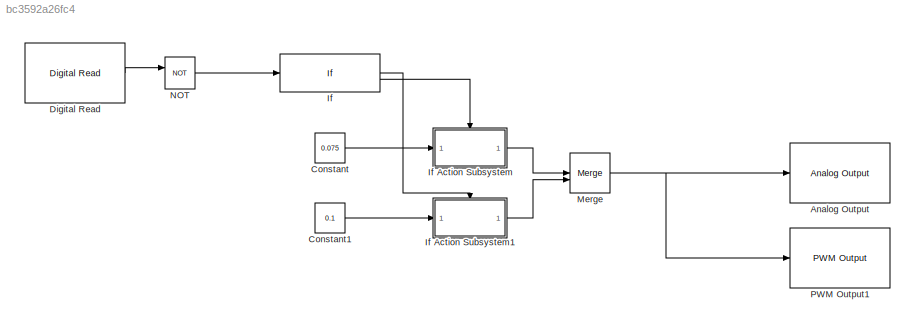
MODEL slx_bc3592a26fc4
KIND model
CONFIG AbsTol = auto
CONFIG EnableMultiTasking = on
CONFIG FixedStep = auto
CONFIG MaxStep = auto
CONFIG MinStep = auto
CONFIG RelTol = 1e-3
CONFIG SampleTimeConstraint = Unconstrained
CONFIG SolverName = FixedStepAuto
CONFIG StartTime = 0.0
CONFIG StopTime = 1
BLOCK [Reference] Analog Output  REF=mbedblockslib/Analog Output
  LibrarySourceBlock = stmnucleorootlib/Common/Analog Output
  SourceBlock = mbedblockslib/Analog Output
  SourceType = mbed.AnalogOutput
BLOCK [Constant] Constant
  Value = 0.075
BLOCK [Constant] Constant1
  Value = 0.1
BLOCK [Reference] Digital Read  REF=mbedblockslib/Digital Read
  LibrarySourceBlock = stmnucleorootlib/Common/Digital Read
  SourceBlock = mbedblockslib/Digital Read
  SourceType = mbed.DigitalRead
BLOCK [If] If
  IfExpression = u1 == 1
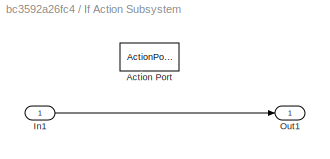
BLOCK [SubSystem] If Action Subsystem
  TreatAsAtomicUnit = on
BLOCK [ActionPort] If Action Subsystem/Action Port
  ActionPortLabel = else
BLOCK [Inport] If Action Subsystem/In1
BLOCK [Outport] If Action Subsystem/Out1
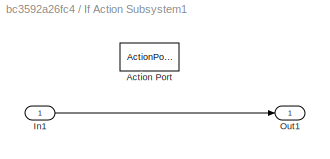
BLOCK [SubSystem] If Action Subsystem1
  TreatAsAtomicUnit = on
BLOCK [ActionPort] If Action Subsystem1/Action Port
  ActionPortLabel = if(u1 == 1)
BLOCK [Inport] If Action Subsystem1/In1
BLOCK [Outport] If Action Subsystem1/Out1
BLOCK [Merge] Merge
BLOCK [Logic] NOT
  AllPortsSameDT = off
  IconShape = distinctive
  Operator = NOT
  OutDataTypeStr = boolean
BLOCK [Reference] PWM Output1  REF=mbedblockslib/PWM Output
  LibrarySourceBlock = stmnucleorootlib/Common/PWM Output
  SourceBlock = mbedblockslib/PWM Output
  SourceType = mbed.PWMOutput
LINE Constant1:1 -> If Action Subsystem1:1
LINE Constant:1 -> If Action Subsystem:1
LINE Digital Read:1 -> NOT:1
LINE If Action Subsystem/In1:1 -> If Action Subsystem/Out1:1
LINE If Action Subsystem1/In1:1 -> If Action Subsystem1/Out1:1
LINE If Action Subsystem1:1 -> Merge:2
LINE If Action Subsystem:1 -> Merge:1
LINE If:1 -> If Action Subsystem1:ifaction
LINE If:2 -> If Action Subsystem:ifaction
NET Merge:1 -> Analog Output:1, PWM Output1:1
LINE NOT:1 -> If:1
note: NET lines group one-source signal fan-out (src -> all destinations, sorted); 1:1 wires keep LINE
